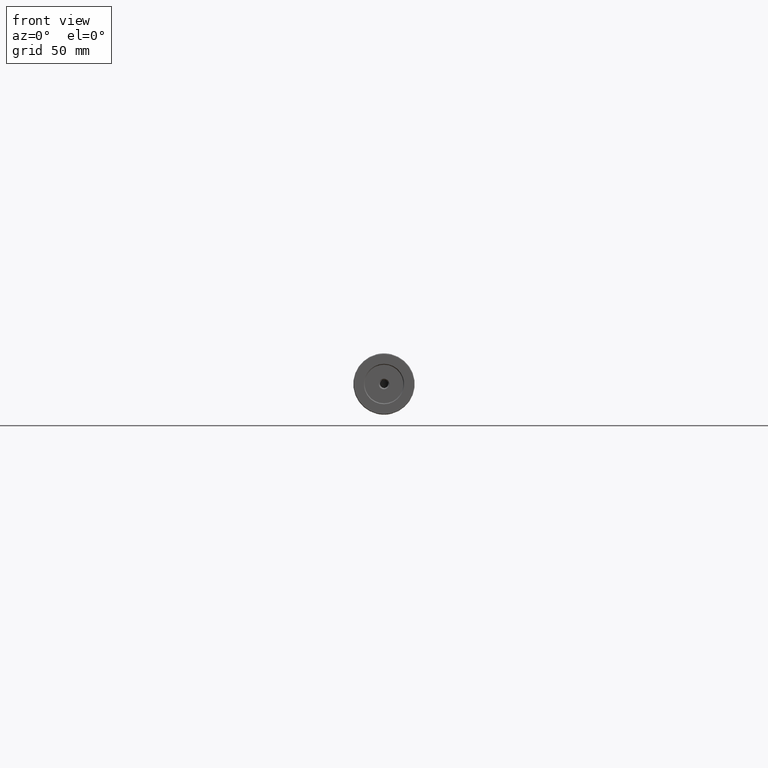
[diagram: clean part render]
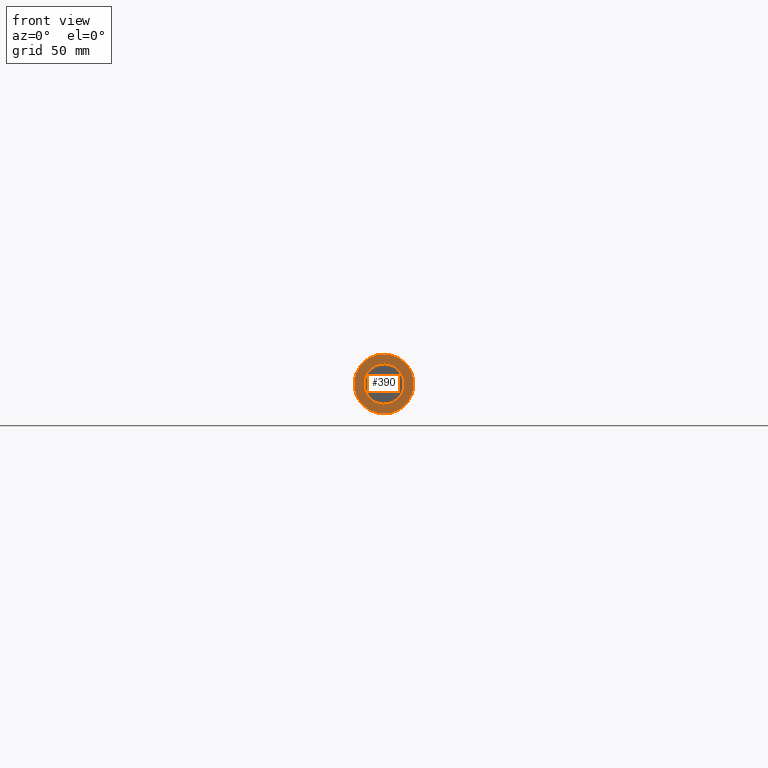
[diagram: same view with one face highlighted and labeled with its STEP entity id]
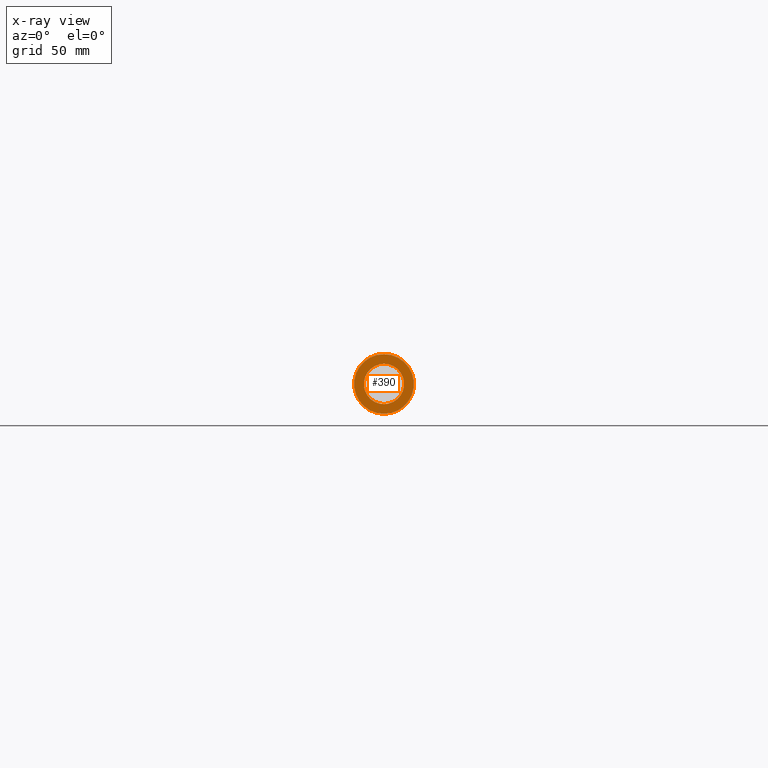
[diagram: x-ray of the same camera — body ghosted, the highlighted face saturated]
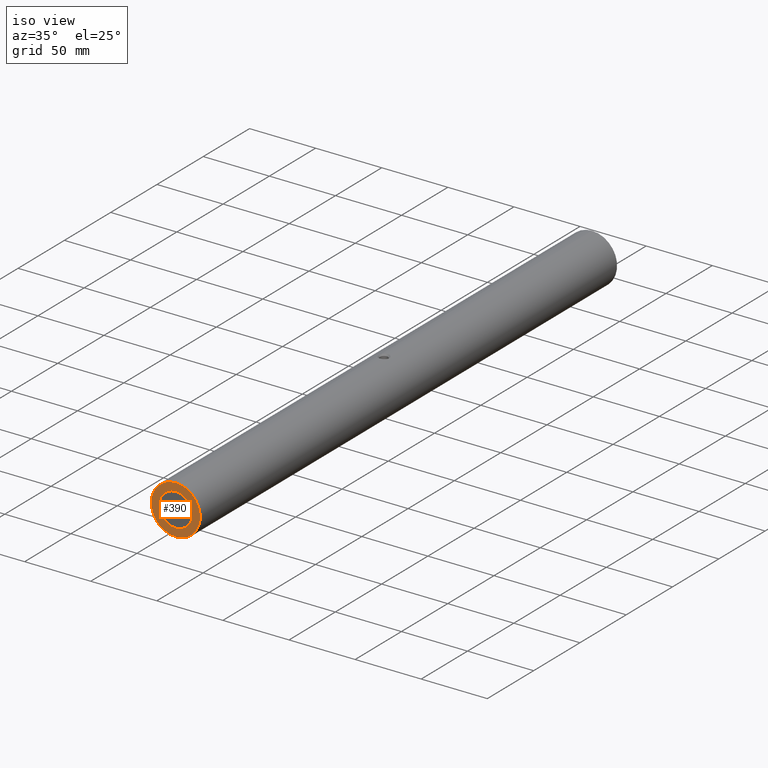
[diagram: same view with one face highlighted and labeled with its STEP entity id]
A machine part, front view. The second image highlights one B-rep face of the part: STEP entity #390.
The next image is the same camera in x-ray: the body ghosted, the highlighted face saturated — about 0% of this face is hidden behind the body in this view.
A second angle (iso view) of the same face is appended — the face is thin or edge-on in the first view.
In plain terms, the highlighted planar face has unit normal (0, 1, 0).
Its self-contained STEP definition (entity closure, byte-faithful):
#18 = CARTESIAN_POINT ( 'NONE',  ( -85.22679983354142053, -229.2613399916742765, 387.5000000000000000 ) ) ;
#50 = CARTESIAN_POINT ( 'NONE',  ( -85.22679983354142053, -229.2613399916742765, 400.0000000000000000 ) ) ;
#54 = CARTESIAN_POINT ( 'NONE',  ( -85.22679983354142053, -229.2613399916742765, 400.0000000000000000 ) ) ;
#147 = CIRCLE ( 'NONE', #387, 12.50000000000001066 ) ;
#161 = AXIS2_PLACEMENT_3D ( 'NONE', #50, #353, #895 ) ;
#191 = VERTEX_POINT ( 'NONE', #18 ) ;
#208 = CARTESIAN_POINT ( 'NONE',  ( -85.22679983354142053, -229.2613399916742765, 400.0000000000000000 ) ) ;
#232 = DIRECTION ( 'NONE',  ( -0.0000000000000000000, -1.000000000000000000, -0.0000000000000000000 ) ) ;
#233 = VERTEX_POINT ( 'NONE', #811 ) ;
#353 = DIRECTION ( 'NONE',  ( -0.0000000000000000000, 1.000000000000000000, -0.0000000000000000000 ) ) ;
#387 = AXIS2_PLACEMENT_3D ( 'NONE', #54, #986, #765 ) ;
#390 = ADVANCED_FACE ( 'NONE', ( #432, #904 ), #745, .F. ) ;
#396 = EDGE_LOOP ( 'NONE', ( #480, #934 ) ) ;
#432 = FACE_BOUND ( 'NONE', #681, .T. ) ;
#480 = ORIENTED_EDGE ( 'NONE', *, *, #700, .T. ) ;
#483 = AXIS2_PLACEMENT_3D ( 'NONE', #490, #865, #729 ) ;
#490 = CARTESIAN_POINT ( 'NONE',  ( -85.22679983354142053, -229.2613399916742765, 400.0000000000000000 ) ) ;
#516 = EDGE_CURVE ( 'NONE', #233, #708, #675, .T. ) ;
#525 = DIRECTION ( 'NONE',  ( 0.0000000000000000000, 1.000000000000000000, 0.0000000000000000000 ) ) ;
#607 = CARTESIAN_POINT ( 'NONE',  ( -85.22679983354142053, -229.2613399916742765, 412.5000000000000568 ) ) ;
#667 = DIRECTION ( 'NONE',  ( 0.0000000000000000000, -0.0000000000000000000, 1.000000000000000000 ) ) ;
#675 = CIRCLE ( 'NONE', #727, 18.50000000000001776 ) ;
#681 = EDGE_LOOP ( 'NONE', ( #702, #980 ) ) ;
#700 = EDGE_CURVE ( 'NONE', #708, #233, #954, .T. ) ;
#702 = ORIENTED_EDGE ( 'NONE', *, *, #816, .T. ) ;
#708 = VERTEX_POINT ( 'NONE', #794 ) ;
#717 = CARTESIAN_POINT ( 'NONE',  ( -85.22679983354142053, -229.2613399916742765, 400.0000000000000000 ) ) ;
#727 = AXIS2_PLACEMENT_3D ( 'NONE', #717, #232, #777 ) ;
#729 = DIRECTION ( 'NONE',  ( 0.0000000000000000000, 0.0000000000000000000, 1.000000000000000000 ) ) ;
#745 = PLANE ( 'NONE',  #913 ) ;
#765 = DIRECTION ( 'NONE',  ( 0.0000000000000000000, 0.0000000000000000000, 1.000000000000000000 ) ) ;
#777 = DIRECTION ( 'NONE',  ( 0.0000000000000000000, 0.0000000000000000000, 1.000000000000000000 ) ) ;
#794 = CARTESIAN_POINT ( 'NONE',  ( -85.22679983354142053, -229.2613399916742765, 418.5000000000000568 ) ) ;
#811 = CARTESIAN_POINT ( 'NONE',  ( -85.22679983354142053, -229.2613399916742765, 381.5000000000000000 ) ) ;
#816 = EDGE_CURVE ( 'NONE', #961, #191, #837, .T. ) ;
#837 = CIRCLE ( 'NONE', #161, 12.50000000000001066 ) ;
#865 = DIRECTION ( 'NONE',  ( -0.0000000000000000000, -1.000000000000000000, -0.0000000000000000000 ) ) ;
#882 = EDGE_CURVE ( 'NONE', #191, #961, #147, .T. ) ;
#895 = DIRECTION ( 'NONE',  ( 0.0000000000000000000, 0.0000000000000000000, 1.000000000000000000 ) ) ;
#904 = FACE_OUTER_BOUND ( 'NONE', #396, .T. ) ;
#913 = AXIS2_PLACEMENT_3D ( 'NONE', #208, #525, #667 ) ;
#934 = ORIENTED_EDGE ( 'NONE', *, *, #516, .T. ) ;
#954 = CIRCLE ( 'NONE', #483, 18.50000000000001776 ) ;
#961 = VERTEX_POINT ( 'NONE', #607 ) ;
#980 = ORIENTED_EDGE ( 'NONE', *, *, #882, .T. ) ;
#986 = DIRECTION ( 'NONE',  ( -0.0000000000000000000, 1.000000000000000000, -0.0000000000000000000 ) ) ;